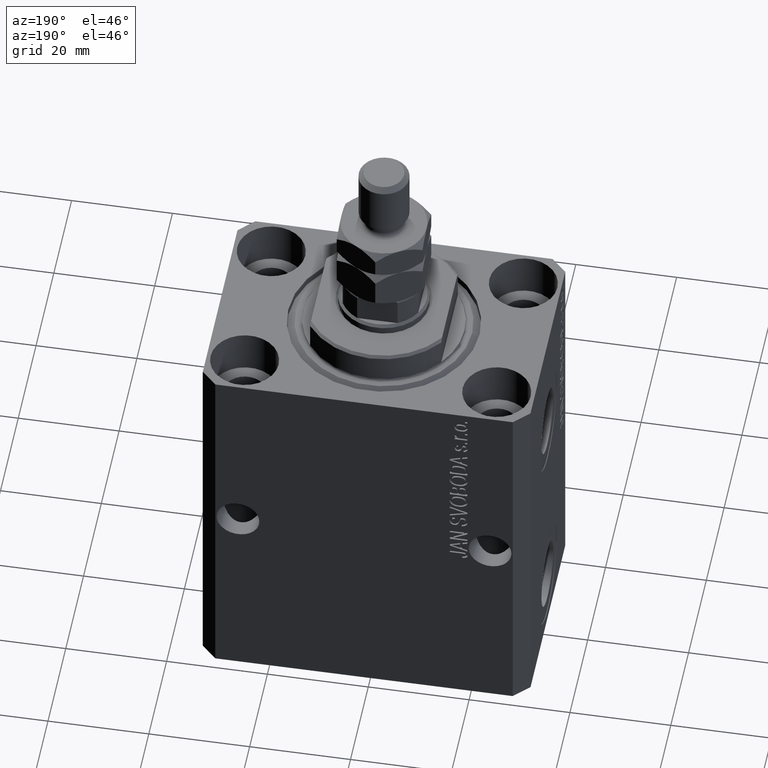
[diagram: clean part render]
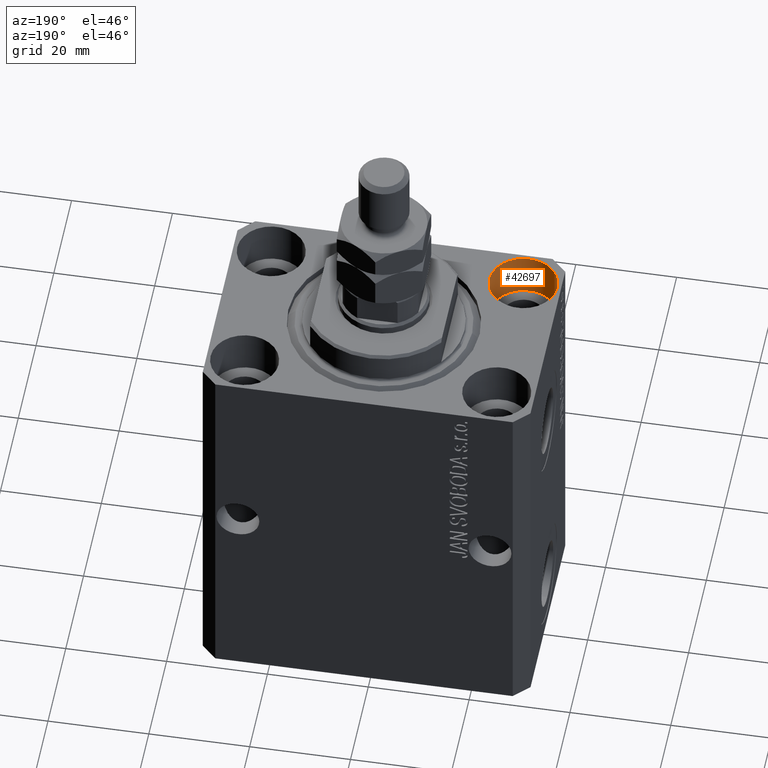
[diagram: same view with one face highlighted and labeled with its STEP entity id]
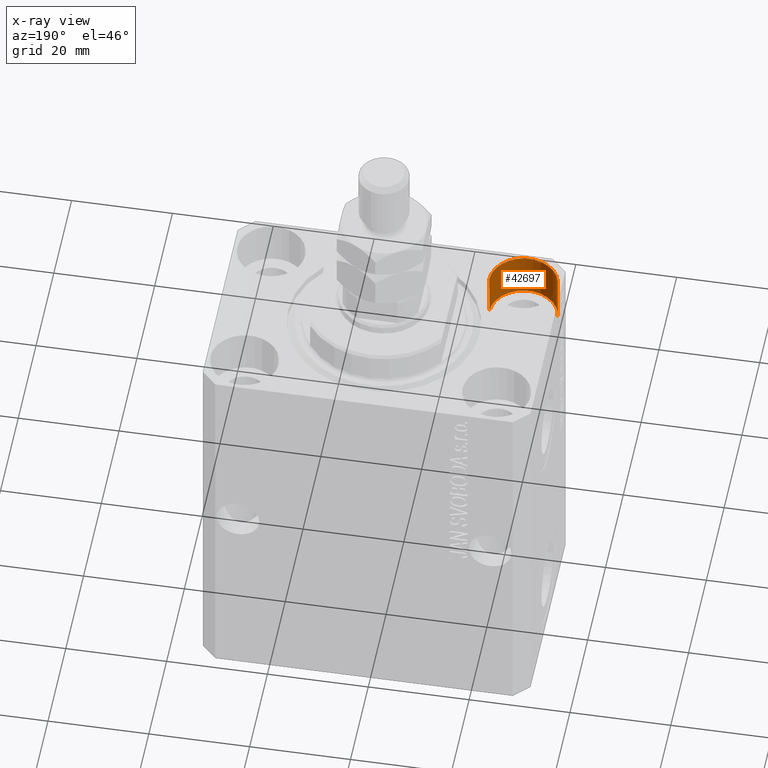
[diagram: x-ray of the same camera — body ghosted, the highlighted face saturated]
A machine part, auxiliary view. The second image highlights one B-rep face of the part: STEP entity #42697.
The next image is the same camera in x-ray: the body ghosted, the highlighted face saturated — about 0% of this face is hidden behind the body in this view.
In plain terms, the highlighted cylindrical surface (edge-blend (fillet) strip) has radius 6.75 mm, axis along (0, 0, 1).
Its self-contained STEP definition (entity closure, byte-faithful):
#433 = EDGE_LOOP ( 'NONE', ( #4678, #2197, #18618, #13621 ) ) ;
#1000 = DIRECTION ( 'NONE',  ( -0.000000000000000000, -0.000000000000000000, 1.000000000000000000 ) ) ;
#1416 = LINE ( 'NONE', #9389, #25821 ) ;
#1627 = CARTESIAN_POINT ( 'NONE',  ( -31.75000000004154899, -15.00000000000000000, 0.000000000000000000 ) ) ;
#1699 = DIRECTION ( 'NONE',  ( 1.000000000000000000, 0.000000000000000000, 0.000000000000000000 ) ) ;
#2197 = ORIENTED_EDGE ( 'NONE', *, *, #43353, .T. ) ;
#2913 = DIRECTION ( 'NONE',  ( 1.000000000000000000, 0.000000000000000000, 0.000000000000000000 ) ) ;
#4678 = ORIENTED_EDGE ( 'NONE', *, *, #45382, .F. ) ;
#6015 = EDGE_CURVE ( 'NONE', #36803, #44061, #30959, .T. ) ;
#7373 = CARTESIAN_POINT ( 'NONE',  ( -25.00000000000000355, -15.00000000000000000, -9.000000000000000000 ) ) ;
#8508 = CYLINDRICAL_SURFACE ( 'NONE', #25787, 6.750000000041541881 ) ;
#8698 = DIRECTION ( 'NONE',  ( -0.000000000000000000, -0.000000000000000000, 1.000000000000000000 ) ) ;
#9389 = CARTESIAN_POINT ( 'NONE',  ( -31.75000000004154899, -15.00000000000000000, -9.000000000000000000 ) ) ;
#13621 = ORIENTED_EDGE ( 'NONE', *, *, #6015, .F. ) ;
#17269 = DIRECTION ( 'NONE',  ( 0.000000000000000000, 0.000000000000000000, 1.000000000000000000 ) ) ;
#18618 = ORIENTED_EDGE ( 'NONE', *, *, #34388, .T. ) ;
#19733 = DIRECTION ( 'NONE',  ( 0.000000000000000000, 0.000000000000000000, 1.000000000000000000 ) ) ;
#20382 = VERTEX_POINT ( 'NONE', #29901 ) ;
#22597 = CARTESIAN_POINT ( 'NONE',  ( -18.24999999995846167, -15.00000000000000000, 0.000000000000000000 ) ) ;
#24913 = AXIS2_PLACEMENT_3D ( 'NONE', #30564, #19733, #38099 ) ;
#25787 = AXIS2_PLACEMENT_3D ( 'NONE', #33249, #1000, #1699 ) ;
#25821 = VECTOR ( 'NONE', #8698, 1000.000000000000000 ) ;
#27402 = CIRCLE ( 'NONE', #40961, 6.750000000041541881 ) ;
#27661 = CARTESIAN_POINT ( 'NONE',  ( -18.24999999995846167, -15.00000000000000000, -9.000000000000000000 ) ) ;
#29901 = CARTESIAN_POINT ( 'NONE',  ( -31.75000000004154899, -15.00000000000000000, -9.000000000000000000 ) ) ;
#30564 = CARTESIAN_POINT ( 'NONE',  ( -25.00000000000000355, -15.00000000000000000, 0.000000000000000000 ) ) ;
#30959 = LINE ( 'NONE', #27661, #36430 ) ;
#31769 = CARTESIAN_POINT ( 'NONE',  ( -18.24999999995846167, -15.00000000000000000, -9.000000000000000000 ) ) ;
#33249 = CARTESIAN_POINT ( 'NONE',  ( -25.00000000000000355, -15.00000000000000000, -9.000000000000000000 ) ) ;
#34388 = EDGE_CURVE ( 'NONE', #35293, #44061, #39215, .T. ) ;
#35293 = VERTEX_POINT ( 'NONE', #1627 ) ;
#36430 = VECTOR ( 'NONE', #45313, 1000.000000000000000 ) ;
#36782 = FACE_OUTER_BOUND ( 'NONE', #433, .T. ) ;
#36803 = VERTEX_POINT ( 'NONE', #31769 ) ;
#38099 = DIRECTION ( 'NONE',  ( 1.000000000000000000, 0.000000000000000000, 0.000000000000000000 ) ) ;
#39215 = CIRCLE ( 'NONE', #24913, 6.750000000041541881 ) ;
#40961 = AXIS2_PLACEMENT_3D ( 'NONE', #7373, #17269, #2913 ) ;
#42697 = ADVANCED_FACE ( 'NONE', ( #36782 ), #8508, .F. ) ;
#43353 = EDGE_CURVE ( 'NONE', #20382, #35293, #1416, .T. ) ;
#44061 = VERTEX_POINT ( 'NONE', #22597 ) ;
#45313 = DIRECTION ( 'NONE',  ( -0.000000000000000000, -0.000000000000000000, 1.000000000000000000 ) ) ;
#45382 = EDGE_CURVE ( 'NONE', #20382, #36803, #27402, .T. ) ;